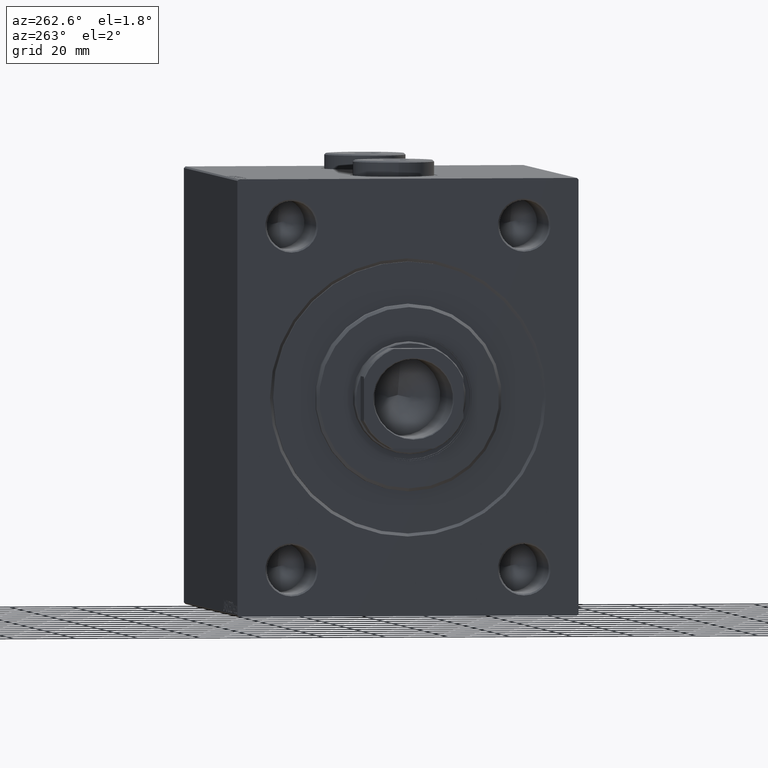
[diagram: clean part render]
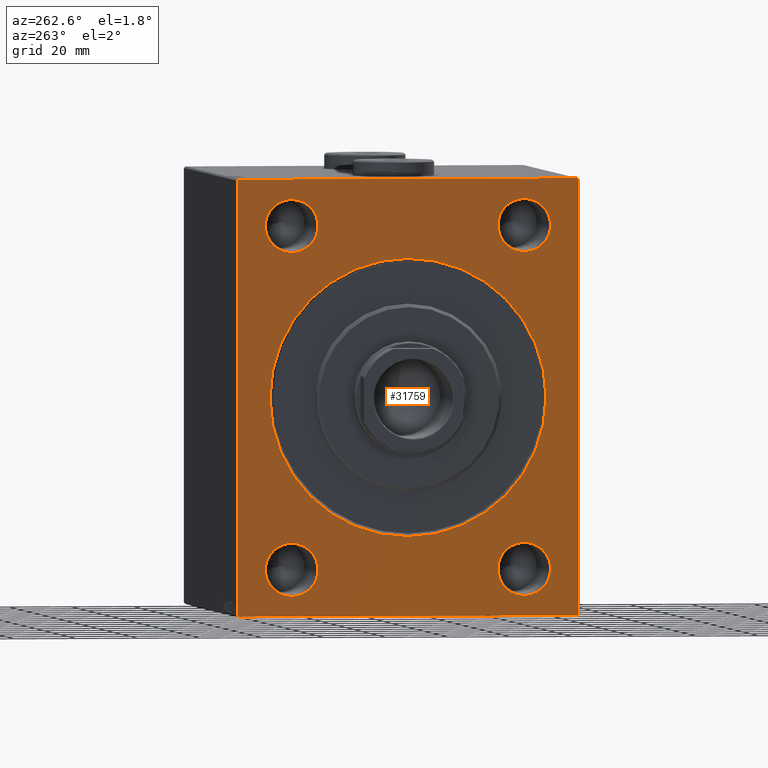
[diagram: same view with one face highlighted and labeled with its STEP entity id]
A machine part, auxiliary view. The second image highlights one B-rep face of the part: STEP entity #31759.
In plain terms, the highlighted planar face has unit normal (1, 0, 0).
Its self-contained STEP definition (entity closure, byte-faithful):
#14 = DIRECTION ( 'NONE',  ( 0.000000000000000000, 0.000000000000000000, -1.000000000000000000 ) ) ;
#281 = VERTEX_POINT ( 'NONE', #36906 ) ;
#439 = CARTESIAN_POINT ( 'NONE',  ( 0.000000000000000000, 37.50000000000000000, -46.49999999999998579 ) ) ;
#509 = CARTESIAN_POINT ( 'NONE',  ( 0.000000000000000000, -54.49999999999997158, -70.00000000000000000 ) ) ;
#718 = VERTEX_POINT ( 'NONE', #31737 ) ;
#909 = CARTESIAN_POINT ( 'NONE',  ( 0.000000000000000000, -55.00000000000000000, 69.50000000000000000 ) ) ;
#1079 = CARTESIAN_POINT ( 'NONE',  ( 0.000000000000000000, 55.00000000000000711, -69.49999999999998579 ) ) ;
#1095 = FACE_BOUND ( 'NONE', #15981, .T. ) ;
#1180 = CARTESIAN_POINT ( 'NONE',  ( 0.000000000000000000, -37.49999999999999289, 63.50000000000001421 ) ) ;
#2172 = EDGE_LOOP ( 'NONE', ( #37913, #3418 ) ) ;
#2217 = CIRCLE ( 'NONE', #37638, 8.500000000000007105 ) ;
#2851 = EDGE_CURVE ( 'NONE', #45179, #281, #39737, .T. ) ;
#3129 = EDGE_LOOP ( 'NONE', ( #13282, #34688, #16066, #4159, #33606, #25469, #43173, #29738 ) ) ;
#3217 = DIRECTION ( 'NONE',  ( 0.000000000000000000, 0.000000000000000000, -1.000000000000000000 ) ) ;
#3418 = ORIENTED_EDGE ( 'NONE', *, *, #21308, .T. ) ;
#3624 = ORIENTED_EDGE ( 'NONE', *, *, #43845, .T. ) ;
#3721 = DIRECTION ( 'NONE',  ( 1.000000000000000000, 0.000000000000000000, 0.000000000000000000 ) ) ;
#3923 = CARTESIAN_POINT ( 'NONE',  ( 0.000000000000000000, 54.49999999999999289, 70.00000000000001421 ) ) ;
#4159 = ORIENTED_EDGE ( 'NONE', *, *, #20114, .T. ) ;
#4250 = ORIENTED_EDGE ( 'NONE', *, *, #10517, .T. ) ;
#4582 = DIRECTION ( 'NONE',  ( 0.000000000000000000, 0.000000000000000000, -1.000000000000000000 ) ) ;
#4939 = EDGE_CURVE ( 'NONE', #281, #45179, #13259, .T. ) ;
#4995 = DIRECTION ( 'NONE',  ( 1.000000000000000000, 0.000000000000000000, 0.000000000000000000 ) ) ;
#5576 = EDGE_CURVE ( 'NONE', #718, #14872, #2217, .T. ) ;
#5995 = ORIENTED_EDGE ( 'NONE', *, *, #35908, .T. ) ;
#6143 = EDGE_CURVE ( 'NONE', #31541, #10115, #43432, .T. ) ;
#6364 = LINE ( 'NONE', #28055, #8184 ) ;
#6801 = VECTOR ( 'NONE', #34437, 1000.000000000000000 ) ;
#7170 = VERTEX_POINT ( 'NONE', #25161 ) ;
#8057 = DIRECTION ( 'NONE',  ( 0.000000000000000000, 0.000000000000000000, -1.000000000000000000 ) ) ;
#8184 = VECTOR ( 'NONE', #20899, 1000.000000000000000 ) ;
#8868 = CIRCLE ( 'NONE', #40567, 8.500000000000007105 ) ;
#8875 = CARTESIAN_POINT ( 'NONE',  ( 0.000000000000000000, -37.49999999999999289, 55.00000000000000711 ) ) ;
#9955 = DIRECTION ( 'NONE',  ( 0.000000000000000000, 0.000000000000000000, -1.000000000000000000 ) ) ;
#10115 = VERTEX_POINT ( 'NONE', #19737 ) ;
#10420 = VERTEX_POINT ( 'NONE', #27759 ) ;
#10517 = EDGE_CURVE ( 'NONE', #14872, #718, #8868, .T. ) ;
#11268 = AXIS2_PLACEMENT_3D ( 'NONE', #20846, #11518, #8057 ) ;
#11518 = DIRECTION ( 'NONE',  ( 1.000000000000000000, 0.000000000000000000, 0.000000000000000000 ) ) ;
#11800 = CARTESIAN_POINT ( 'NONE',  ( 0.000000000000000000, -55.00000000000000000, 70.00000000000000000 ) ) ;
#11968 = FACE_BOUND ( 'NONE', #14326, .T. ) ;
#12602 = EDGE_CURVE ( 'NONE', #37197, #19761, #6364, .T. ) ;
#13259 = CIRCLE ( 'NONE', #31712, 8.500000000000007105 ) ;
#13264 = CARTESIAN_POINT ( 'NONE',  ( 0.000000000000000000, -37.49999999999999289, -63.50000000000000000 ) ) ;
#13282 = ORIENTED_EDGE ( 'NONE', *, *, #6143, .F. ) ;
#13405 = CARTESIAN_POINT ( 'NONE',  ( 0.000000000000000000, -37.49999999999999289, 55.00000000000000711 ) ) ;
#14326 = EDGE_LOOP ( 'NONE', ( #45440, #20282 ) ) ;
#14648 = VERTEX_POINT ( 'NONE', #1180 ) ;
#14708 = VERTEX_POINT ( 'NONE', #30994 ) ;
#14735 = CARTESIAN_POINT ( 'NONE',  ( 0.000000000000000000, 37.50000000000000000, -54.99999999999999289 ) ) ;
#14872 = VERTEX_POINT ( 'NONE', #439 ) ;
#15192 = PLANE ( 'NONE',  #28258 ) ;
#15734 = CARTESIAN_POINT ( 'NONE',  ( 0.000000000000000000, 55.00000000000000711, -69.49999999999998579 ) ) ;
#15885 = FACE_BOUND ( 'NONE', #27514, .T. ) ;
#15981 = EDGE_LOOP ( 'NONE', ( #5995, #32056 ) ) ;
#16038 = VERTEX_POINT ( 'NONE', #1079 ) ;
#16066 = ORIENTED_EDGE ( 'NONE', *, *, #12602, .F. ) ;
#16391 = CARTESIAN_POINT ( 'NONE',  ( 0.000000000000000000, -54.49999999999999289, 70.00000000000000000 ) ) ;
#16802 = CIRCLE ( 'NONE', #25014, 8.500000000000007105 ) ;
#16933 = EDGE_LOOP ( 'NONE', ( #4250, #27744 ) ) ;
#17029 = CARTESIAN_POINT ( 'NONE',  ( 0.000000000000000000, 54.99999999999999289, 69.50000000000001421 ) ) ;
#17489 = EDGE_CURVE ( 'NONE', #7170, #23980, #22051, .T. ) ;
#17608 = AXIS2_PLACEMENT_3D ( 'NONE', #32106, #35331, #39251 ) ;
#17826 = CARTESIAN_POINT ( 'NONE',  ( 0.000000000000000000, -55.00000000000000000, -70.00000000000000000 ) ) ;
#18115 = VERTEX_POINT ( 'NONE', #42080 ) ;
#18429 = DIRECTION ( 'NONE',  ( 1.000000000000000000, 0.000000000000000000, 0.000000000000000000 ) ) ;
#18647 = EDGE_CURVE ( 'NONE', #10420, #20449, #16802, .T. ) ;
#18937 = DIRECTION ( 'NONE',  ( -0.000000000000000000, 0.7071067811865525687, 0.7071067811865425767 ) ) ;
#18963 = EDGE_CURVE ( 'NONE', #16038, #14708, #33303, .T. ) ;
#19128 = VECTOR ( 'NONE', #40445, 1000.000000000000000 ) ;
#19223 = VERTEX_POINT ( 'NONE', #32776 ) ;
#19279 = VERTEX_POINT ( 'NONE', #17029 ) ;
#19434 = CARTESIAN_POINT ( 'NONE',  ( 0.000000000000000000, 55.00000000000000711, -69.99999999999998579 ) ) ;
#19737 = CARTESIAN_POINT ( 'NONE',  ( 0.000000000000000000, -55.00000000000000000, -69.50000000000000000 ) ) ;
#19761 = VERTEX_POINT ( 'NONE', #16391 ) ;
#20114 = EDGE_CURVE ( 'NONE', #37197, #19279, #33682, .T. ) ;
#20282 = ORIENTED_EDGE ( 'NONE', *, *, #4939, .T. ) ;
#20449 = VERTEX_POINT ( 'NONE', #13264 ) ;
#20846 = CARTESIAN_POINT ( 'NONE',  ( 0.000000000000000000, 0.000000000000000000, 0.000000000000000000 ) ) ;
#20899 = DIRECTION ( 'NONE',  ( 0.000000000000000000, -1.000000000000000000, -1.261617073437677999E-16 ) ) ;
#21308 = EDGE_CURVE ( 'NONE', #18115, #14648, #41214, .T. ) ;
#21311 = ORIENTED_EDGE ( 'NONE', *, *, #18647, .T. ) ;
#21740 = DIRECTION ( 'NONE',  ( 0.000000000000000000, 0.000000000000000000, -1.000000000000000000 ) ) ;
#21951 = CARTESIAN_POINT ( 'NONE',  ( 0.000000000000000000, 37.50000000000000000, -54.99999999999999289 ) ) ;
#22017 = VECTOR ( 'NONE', #26745, 1000.000000000000114 ) ;
#22051 = CIRCLE ( 'NONE', #33115, 44.50000000000001421 ) ;
#22079 = DIRECTION ( 'NONE',  ( 1.000000000000000000, 0.000000000000000000, 0.000000000000000000 ) ) ;
#23121 = LINE ( 'NONE', #19434, #6801 ) ;
#23179 = VECTOR ( 'NONE', #18937, 999.9999999999998863 ) ;
#23739 = VECTOR ( 'NONE', #42754, 1000.000000000000000 ) ;
#23932 = CARTESIAN_POINT ( 'NONE',  ( 0.000000000000000000, 37.50000000000000000, 63.50000000000001421 ) ) ;
#23980 = VERTEX_POINT ( 'NONE', #24274 ) ;
#24274 = CARTESIAN_POINT ( 'NONE',  ( 0.000000000000000000, 0.000000000000000000, 44.50000000000001421 ) ) ;
#24774 = AXIS2_PLACEMENT_3D ( 'NONE', #13405, #38794, #9955 ) ;
#24986 = VECTOR ( 'NONE', #21740, 1000.000000000000000 ) ;
#25014 = AXIS2_PLACEMENT_3D ( 'NONE', #43318, #22079, #29241 ) ;
#25161 = CARTESIAN_POINT ( 'NONE',  ( 0.000000000000000000, 5.449678256205723559E-15, -44.50000000000001421 ) ) ;
#25264 = CIRCLE ( 'NONE', #11268, 44.50000000000001421 ) ;
#25469 = ORIENTED_EDGE ( 'NONE', *, *, #18963, .T. ) ;
#25780 = EDGE_CURVE ( 'NONE', #19223, #10115, #42790, .T. ) ;
#26681 = CARTESIAN_POINT ( 'NONE',  ( 0.000000000000000000, 37.50000000000000000, 55.00000000000000711 ) ) ;
#26745 = DIRECTION ( 'NONE',  ( -0.000000000000000000, 0.7071067811865474617, -0.7071067811865474617 ) ) ;
#26995 = CIRCLE ( 'NONE', #37328, 8.500000000000007105 ) ;
#27089 = CARTESIAN_POINT ( 'NONE',  ( 0.000000000000000000, -55.00000000000000000, 69.50000000000000000 ) ) ;
#27514 = EDGE_LOOP ( 'NONE', ( #21311, #3624 ) ) ;
#27744 = ORIENTED_EDGE ( 'NONE', *, *, #5576, .T. ) ;
#27759 = CARTESIAN_POINT ( 'NONE',  ( 0.000000000000000000, -37.49999999999999289, -46.49999999999998579 ) ) ;
#27998 = LINE ( 'NONE', #17826, #23739 ) ;
#28055 = CARTESIAN_POINT ( 'NONE',  ( 0.000000000000000000, 54.99999999999999289, 70.00000000000001421 ) ) ;
#28258 = AXIS2_PLACEMENT_3D ( 'NONE', #37157, #36457, #4582 ) ;
#28705 = DIRECTION ( 'NONE',  ( -0.000000000000000000, -0.7071067811865672237, 0.7071067811865279218 ) ) ;
#29005 = CARTESIAN_POINT ( 'NONE',  ( 0.000000000000000000, 0.000000000000000000, 0.000000000000000000 ) ) ;
#29241 = DIRECTION ( 'NONE',  ( 0.000000000000000000, 0.000000000000000000, -1.000000000000000000 ) ) ;
#29660 = EDGE_CURVE ( 'NONE', #19223, #14708, #27998, .T. ) ;
#29738 = ORIENTED_EDGE ( 'NONE', *, *, #25780, .T. ) ;
#29848 = EDGE_CURVE ( 'NONE', #16038, #19279, #23121, .T. ) ;
#29957 = DIRECTION ( 'NONE',  ( 0.000000000000000000, 0.000000000000000000, -1.000000000000000000 ) ) ;
#30182 = AXIS2_PLACEMENT_3D ( 'NONE', #8875, #32891, #43265 ) ;
#30221 = CARTESIAN_POINT ( 'NONE',  ( 0.000000000000000000, 54.49999999999999289, 70.00000000000001421 ) ) ;
#30994 = CARTESIAN_POINT ( 'NONE',  ( 0.000000000000000000, 54.50000000000001421, -69.99999999999998579 ) ) ;
#31428 = CIRCLE ( 'NONE', #24774, 8.500000000000007105 ) ;
#31541 = VERTEX_POINT ( 'NONE', #27089 ) ;
#31712 = AXIS2_PLACEMENT_3D ( 'NONE', #26681, #34081, #44008 ) ;
#31737 = CARTESIAN_POINT ( 'NONE',  ( 0.000000000000000000, 37.50000000000000000, -63.50000000000000000 ) ) ;
#31759 = ADVANCED_FACE ( 'NONE', ( #1095, #15885, #43840, #11968, #39909, #39677 ), #15192, .F. ) ;
#31796 = VECTOR ( 'NONE', #28705, 1000.000000000000000 ) ;
#32056 = ORIENTED_EDGE ( 'NONE', *, *, #17489, .T. ) ;
#32106 = CARTESIAN_POINT ( 'NONE',  ( 0.000000000000000000, 37.50000000000000000, 55.00000000000000711 ) ) ;
#32776 = CARTESIAN_POINT ( 'NONE',  ( 0.000000000000000000, -54.49999999999997158, -70.00000000000000000 ) ) ;
#32891 = DIRECTION ( 'NONE',  ( 1.000000000000000000, 0.000000000000000000, 0.000000000000000000 ) ) ;
#33115 = AXIS2_PLACEMENT_3D ( 'NONE', #29005, #43310, #3217 ) ;
#33303 = LINE ( 'NONE', #15734, #19128 ) ;
#33606 = ORIENTED_EDGE ( 'NONE', *, *, #29848, .F. ) ;
#33648 = CARTESIAN_POINT ( 'NONE',  ( 0.000000000000000000, -37.49999999999999289, -54.99999999999999289 ) ) ;
#33682 = LINE ( 'NONE', #30221, #22017 ) ;
#34081 = DIRECTION ( 'NONE',  ( 1.000000000000000000, 0.000000000000000000, 0.000000000000000000 ) ) ;
#34437 = DIRECTION ( 'NONE',  ( 0.000000000000000000, -9.912705577010325549E-17, 1.000000000000000000 ) ) ;
#34688 = ORIENTED_EDGE ( 'NONE', *, *, #39075, .T. ) ;
#35331 = DIRECTION ( 'NONE',  ( 1.000000000000000000, 0.000000000000000000, 0.000000000000000000 ) ) ;
#35908 = EDGE_CURVE ( 'NONE', #23980, #7170, #25264, .T. ) ;
#36267 = LINE ( 'NONE', #909, #23179 ) ;
#36457 = DIRECTION ( 'NONE',  ( 1.000000000000000000, 0.000000000000000000, 0.000000000000000000 ) ) ;
#36906 = CARTESIAN_POINT ( 'NONE',  ( 0.000000000000000000, 37.50000000000000000, 46.50000000000000000 ) ) ;
#37157 = CARTESIAN_POINT ( 'NONE',  ( 0.000000000000000000, 0.000000000000000000, 0.000000000000000000 ) ) ;
#37197 = VERTEX_POINT ( 'NONE', #3923 ) ;
#37328 = AXIS2_PLACEMENT_3D ( 'NONE', #33648, #4995, #29957 ) ;
#37638 = AXIS2_PLACEMENT_3D ( 'NONE', #14735, #18429, #39675 ) ;
#37913 = ORIENTED_EDGE ( 'NONE', *, *, #44260, .T. ) ;
#38794 = DIRECTION ( 'NONE',  ( 1.000000000000000000, 0.000000000000000000, 0.000000000000000000 ) ) ;
#39075 = EDGE_CURVE ( 'NONE', #31541, #19761, #36267, .T. ) ;
#39251 = DIRECTION ( 'NONE',  ( 0.000000000000000000, 0.000000000000000000, -1.000000000000000000 ) ) ;
#39675 = DIRECTION ( 'NONE',  ( 0.000000000000000000, 0.000000000000000000, -1.000000000000000000 ) ) ;
#39677 = FACE_OUTER_BOUND ( 'NONE', #3129, .T. ) ;
#39737 = CIRCLE ( 'NONE', #17608, 8.500000000000007105 ) ;
#39909 = FACE_BOUND ( 'NONE', #16933, .T. ) ;
#40445 = DIRECTION ( 'NONE',  ( 0.000000000000000000, -0.7071067811865426878, -0.7071067811865524577 ) ) ;
#40567 = AXIS2_PLACEMENT_3D ( 'NONE', #21951, #3721, #14 ) ;
#41214 = CIRCLE ( 'NONE', #30182, 8.500000000000007105 ) ;
#42080 = CARTESIAN_POINT ( 'NONE',  ( 0.000000000000000000, -37.49999999999999289, 46.50000000000000000 ) ) ;
#42754 = DIRECTION ( 'NONE',  ( 0.000000000000000000, 1.000000000000000000, 1.261617073437677752E-16 ) ) ;
#42790 = LINE ( 'NONE', #509, #31796 ) ;
#43173 = ORIENTED_EDGE ( 'NONE', *, *, #29660, .F. ) ;
#43265 = DIRECTION ( 'NONE',  ( 0.000000000000000000, 0.000000000000000000, -1.000000000000000000 ) ) ;
#43310 = DIRECTION ( 'NONE',  ( 1.000000000000000000, 0.000000000000000000, 0.000000000000000000 ) ) ;
#43318 = CARTESIAN_POINT ( 'NONE',  ( 0.000000000000000000, -37.49999999999999289, -54.99999999999999289 ) ) ;
#43432 = LINE ( 'NONE', #11800, #24986 ) ;
#43840 = FACE_BOUND ( 'NONE', #2172, .T. ) ;
#43845 = EDGE_CURVE ( 'NONE', #20449, #10420, #26995, .T. ) ;
#44008 = DIRECTION ( 'NONE',  ( 0.000000000000000000, 0.000000000000000000, -1.000000000000000000 ) ) ;
#44260 = EDGE_CURVE ( 'NONE', #14648, #18115, #31428, .T. ) ;
#45179 = VERTEX_POINT ( 'NONE', #23932 ) ;
#45440 = ORIENTED_EDGE ( 'NONE', *, *, #2851, .T. ) ;